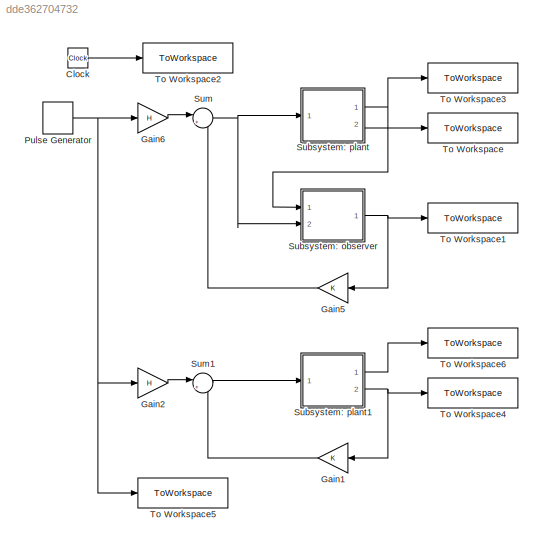
MODEL slx_dde362704732
KIND model
CONFIG AbsTol = auto
CONFIG EnableMultiTasking = on
CONFIG FixedStep = 0.001
CONFIG MaxStep = auto
CONFIG MinStep = auto
CONFIG RelTol = 1e-3
CONFIG SampleTimeConstraint = Unconstrained
CONFIG Solver = ode4
CONFIG SolverName = ode4
CONFIG StartTime = 0.0
CONFIG StopTime = 1
BLOCK [Clock] Clock
BLOCK [Gain] Gain1
  Gain = K
  Multiplication = Matrix(K*u)
BLOCK [Gain] Gain2
  Gain = H
BLOCK [Gain] Gain5
  Gain = K
  Multiplication = Matrix(K*u)
BLOCK [Gain] Gain6
  Gain = H
BLOCK [DiscretePulseGenerator] Pulse Generator
  Period = 10
  Ports = [0, 1]
  PulseType = Time based
  PulseWidth = 50
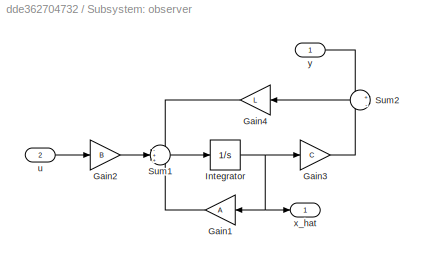
BLOCK [SubSystem] Subsystem: observer
  Ports = [2, 1]
BLOCK [Gain] Subsystem: observer/Gain1
  Gain = A
  Multiplication = Matrix(K*u)
  OutDataTypeStr = Inherit: Same as input
  ParamDataTypeStr = Inherit: Same as input
  SaturateOnIntegerOverflow = on
BLOCK [Gain] Subsystem: observer/Gain2
  Gain = B
  Multiplication = Matrix(K*u)
  OutDataTypeStr = Inherit: Same as input
  ParamDataTypeStr = Inherit: Same as input
  SaturateOnIntegerOverflow = on
BLOCK [Gain] Subsystem: observer/Gain3
  Gain = C
  Multiplication = Matrix(K*u)
  OutDataTypeStr = Inherit: Same as input
  ParamDataTypeStr = Inherit: Same as input
  SaturateOnIntegerOverflow = on
BLOCK [Gain] Subsystem: observer/Gain4
  Gain = L
  Multiplication = Matrix(K*u)
  OutDataTypeStr = Inherit: Same as input
  ParamDataTypeStr = Inherit: Same as input
  SaturateOnIntegerOverflow = on
BLOCK [Integrator] Subsystem: observer/Integrator
  InitialCondition = x0_hat
  Ports = [1, 1]
BLOCK [Sum] Subsystem: observer/Sum1
  InputSameDT = on
  Inputs = -++
  OutDataTypeStr = Inherit: Same as first input
  Ports = [3, 1]
  SaturateOnIntegerOverflow = on
BLOCK [Sum] Subsystem: observer/Sum2
  InputSameDT = on
  Inputs = +|-
  OutDataTypeStr = Inherit: Same as first input
  Ports = [2, 1]
  SaturateOnIntegerOverflow = on
BLOCK [Inport] Subsystem: observer/u
  Port = 2
BLOCK [Outport] Subsystem: observer/x_hat
  VectorParamsAs1DForOutWhenUnconnected = off
BLOCK [Inport] Subsystem: observer/y
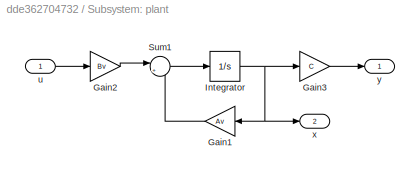
BLOCK [SubSystem] Subsystem: plant
  Ports = [1, 2]
BLOCK [Gain] Subsystem: plant/Gain1
  Gain = Av
  Multiplication = Matrix(K*u)
  OutDataTypeStr = Inherit: Same as input
  ParamDataTypeStr = Inherit: Same as input
  SaturateOnIntegerOverflow = on
BLOCK [Gain] Subsystem: plant/Gain2
  Gain = Bv
  Multiplication = Matrix(K*u)
  OutDataTypeStr = Inherit: Same as input
  ParamDataTypeStr = Inherit: Same as input
  SaturateOnIntegerOverflow = on
BLOCK [Gain] Subsystem: plant/Gain3
  Gain = C
  Multiplication = Matrix(K*u)
  OutDataTypeStr = Inherit: Same as input
  ParamDataTypeStr = Inherit: Same as input
  SaturateOnIntegerOverflow = on
BLOCK [Integrator] Subsystem: plant/Integrator
  InitialCondition = x0
  Ports = [1, 1]
BLOCK [Sum] Subsystem: plant/Sum1
  InputSameDT = on
  Inputs = |++
  NameLocation = top
  OutDataTypeStr = Inherit: Same as first input
  Ports = [2, 1]
  SaturateOnIntegerOverflow = on
BLOCK [Inport] Subsystem: plant/u
BLOCK [Outport] Subsystem: plant/x
  Port = 2
  VectorParamsAs1DForOutWhenUnconnected = off
BLOCK [Outport] Subsystem: plant/y
  VectorParamsAs1DForOutWhenUnconnected = off
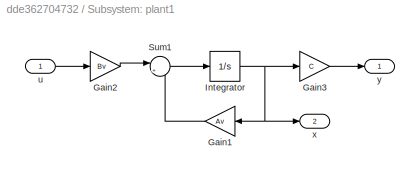
BLOCK [SubSystem] Subsystem: plant1
  Ports = [1, 2]
BLOCK [Gain] Subsystem: plant1/Gain1
  Gain = Av
  Multiplication = Matrix(K*u)
  OutDataTypeStr = Inherit: Same as input
  ParamDataTypeStr = Inherit: Same as input
  SaturateOnIntegerOverflow = on
BLOCK [Gain] Subsystem: plant1/Gain2
  Gain = Bv
  Multiplication = Matrix(K*u)
  OutDataTypeStr = Inherit: Same as input
  ParamDataTypeStr = Inherit: Same as input
  SaturateOnIntegerOverflow = on
BLOCK [Gain] Subsystem: plant1/Gain3
  Gain = C
  Multiplication = Matrix(K*u)
  OutDataTypeStr = Inherit: Same as input
  ParamDataTypeStr = Inherit: Same as input
  SaturateOnIntegerOverflow = on
BLOCK [Integrator] Subsystem: plant1/Integrator
  InitialCondition = x0
  Ports = [1, 1]
BLOCK [Sum] Subsystem: plant1/Sum1
  InputSameDT = on
  Inputs = |++
  NameLocation = top
  OutDataTypeStr = Inherit: Same as first input
  Ports = [2, 1]
  SaturateOnIntegerOverflow = on
BLOCK [Inport] Subsystem: plant1/u
BLOCK [Outport] Subsystem: plant1/x
  Port = 2
  VectorParamsAs1DForOutWhenUnconnected = off
BLOCK [Outport] Subsystem: plant1/y
  VectorParamsAs1DForOutWhenUnconnected = off
BLOCK [Sum] Sum
  InputSameDT = on
  Inputs = |++
  NameLocation = top
  OutDataTypeStr = Inherit: Same as first input
  Ports = [2, 1]
  SaturateOnIntegerOverflow = on
BLOCK [Sum] Sum1
  InputSameDT = on
  Inputs = |++
  NameLocation = top
  OutDataTypeStr = Inherit: Same as first input
  Ports = [2, 1]
  SaturateOnIntegerOverflow = on
BLOCK [ToWorkspace] To Workspace
  FixptAsFi = on
  MaxDataPoints = inf
  Ports = [1]
  SampleTime = -1
  VariableName = x
BLOCK [ToWorkspace] To Workspace1
  FixptAsFi = on
  MaxDataPoints = inf
  Ports = [1]
  SampleTime = -1
  VariableName = x_hat
BLOCK [ToWorkspace] To Workspace2
  FixptAsFi = on
  MaxDataPoints = inf
  Ports = [1]
  SampleTime = -1
  VariableName = t
BLOCK [ToWorkspace] To Workspace3
  FixptAsFi = on
  MaxDataPoints = inf
  Ports = [1]
  SampleTime = -1
  VariableName = y
BLOCK [ToWorkspace] To Workspace4
  FixptAsFi = on
  MaxDataPoints = inf
  Ports = [1]
  SampleTime = -1
  VariableName = x_s
BLOCK [ToWorkspace] To Workspace5
  FixptAsFi = on
  MaxDataPoints = inf
  Ports = [1]
  SampleTime = -1
  VariableName = y_ref
BLOCK [ToWorkspace] To Workspace6
  FixptAsFi = on
  MaxDataPoints = inf
  Ports = [1]
  SampleTime = -1
  VariableName = y_s
LINE Clock:1 -> To Workspace2:1
LINE Gain1:1 -> Sum1:2
LINE Gain2:1 -> Sum1:1
LINE Gain5:1 -> Sum:2
LINE Gain6:1 -> Sum:1
NET Pulse Generator:1 -> Gain2:1, Gain6:1, To Workspace5:1
LINE Subsystem: observer/Gain1:1 -> Subsystem: observer/Sum1:3
LINE Subsystem: observer/Gain2:1 -> Subsystem: observer/Sum1:2
LINE Subsystem: observer/Gain3:1 -> Subsystem: observer/Sum2:2
LINE Subsystem: observer/Gain4:1 -> Subsystem: observer/Sum1:1
NET Subsystem: observer/Integrator:1 -> Subsystem: observer/Gain1:1, Subsystem: observer/Gain3:1, Subsystem: observer/x_hat:1
LINE Subsystem: observer/Sum1:1 -> Subsystem: observer/Integrator:1
LINE Subsystem: observer/Sum2:1 -> Subsystem: observer/Gain4:1
LINE Subsystem: observer/u:1 -> Subsystem: observer/Gain2:1
LINE Subsystem: observer/y:1 -> Subsystem: observer/Sum2:1
NET Subsystem: observer:1 -> Gain5:1, To Workspace1:1
LINE Subsystem: plant/Gain1:1 -> Subsystem: plant/Sum1:2
LINE Subsystem: plant/Gain2:1 -> Subsystem: plant/Sum1:1
LINE Subsystem: plant/Gain3:1 -> Subsystem: plant/y:1
NET Subsystem: plant/Integrator:1 -> Subsystem: plant/Gain1:1, Subsystem: plant/Gain3:1, Subsystem: plant/x:1
LINE Subsystem: plant/Sum1:1 -> Subsystem: plant/Integrator:1
LINE Subsystem: plant/u:1 -> Subsystem: plant/Gain2:1
LINE Subsystem: plant1/Gain1:1 -> Subsystem: plant1/Sum1:2
LINE Subsystem: plant1/Gain2:1 -> Subsystem: plant1/Sum1:1
LINE Subsystem: plant1/Gain3:1 -> Subsystem: plant1/y:1
NET Subsystem: plant1/Integrator:1 -> Subsystem: plant1/Gain1:1, Subsystem: plant1/Gain3:1, Subsystem: plant1/x:1
LINE Subsystem: plant1/Sum1:1 -> Subsystem: plant1/Integrator:1
LINE Subsystem: plant1/u:1 -> Subsystem: plant1/Gain2:1
LINE Subsystem: plant1:1 -> To Workspace6:1
NET Subsystem: plant1:2 -> Gain1:1, To Workspace4:1
NET Subsystem: plant:1 -> Subsystem: observer:1, To Workspace3:1
LINE Subsystem: plant:2 -> To Workspace:1
LINE Sum1:1 -> Subsystem: plant1:1
NET Sum:1 -> Subsystem: observer:2, Subsystem: plant:1
note: NET lines group one-source signal fan-out (src -> all destinations, sorted); 1:1 wires keep LINE
